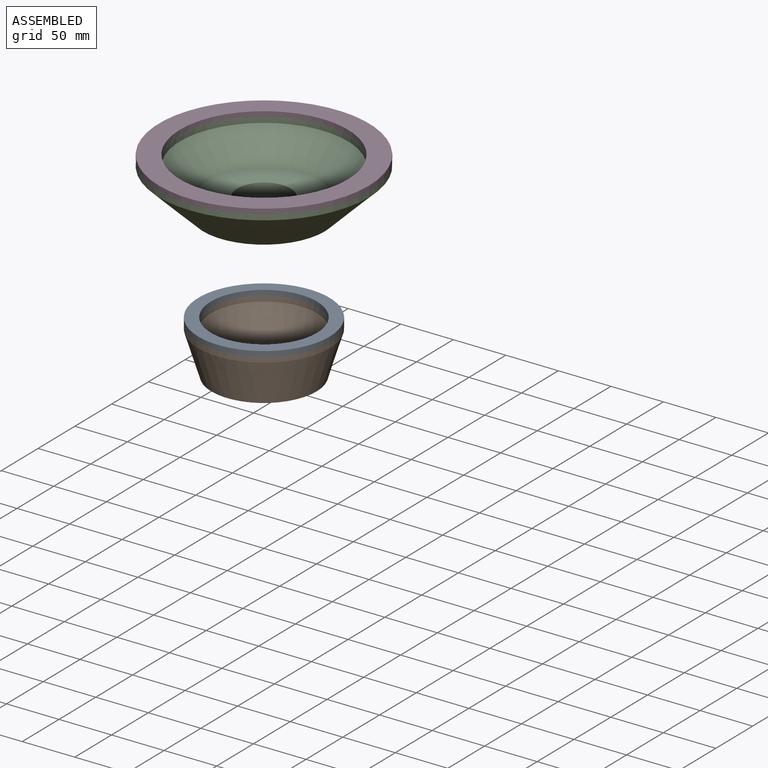
[diagram: assembled view]
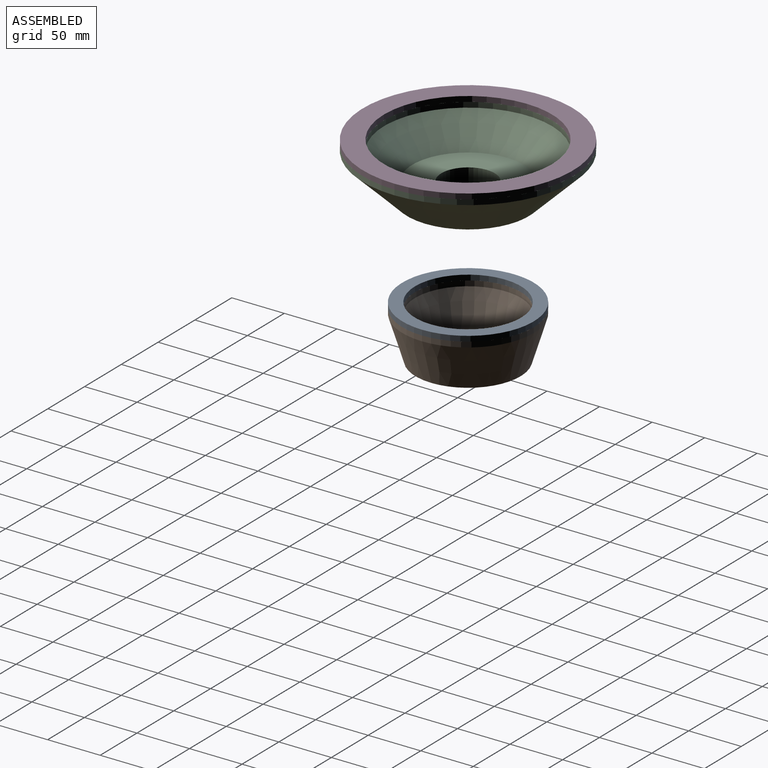
[diagram: assembled view, second angle]
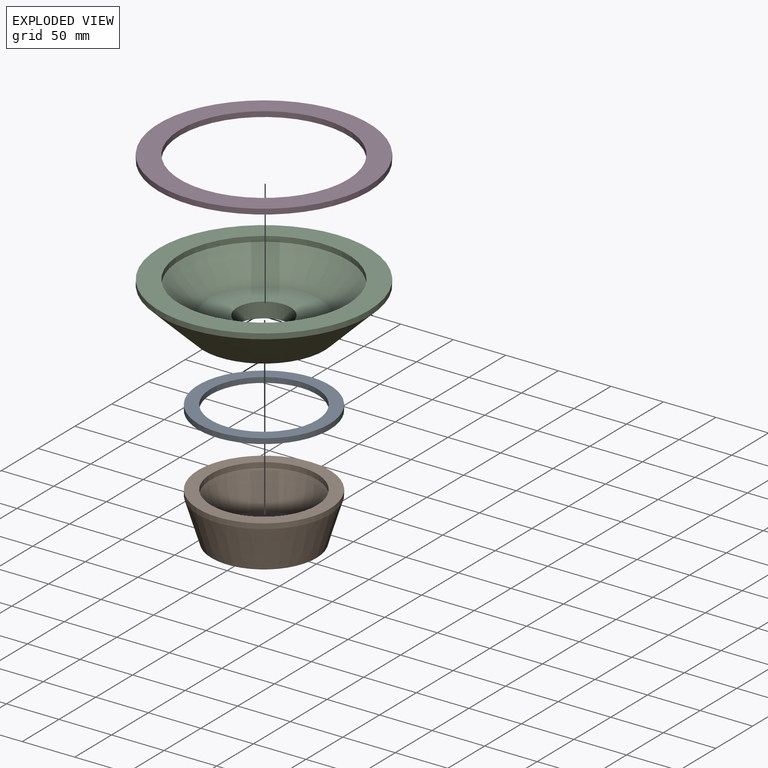
[diagram: exploded view]
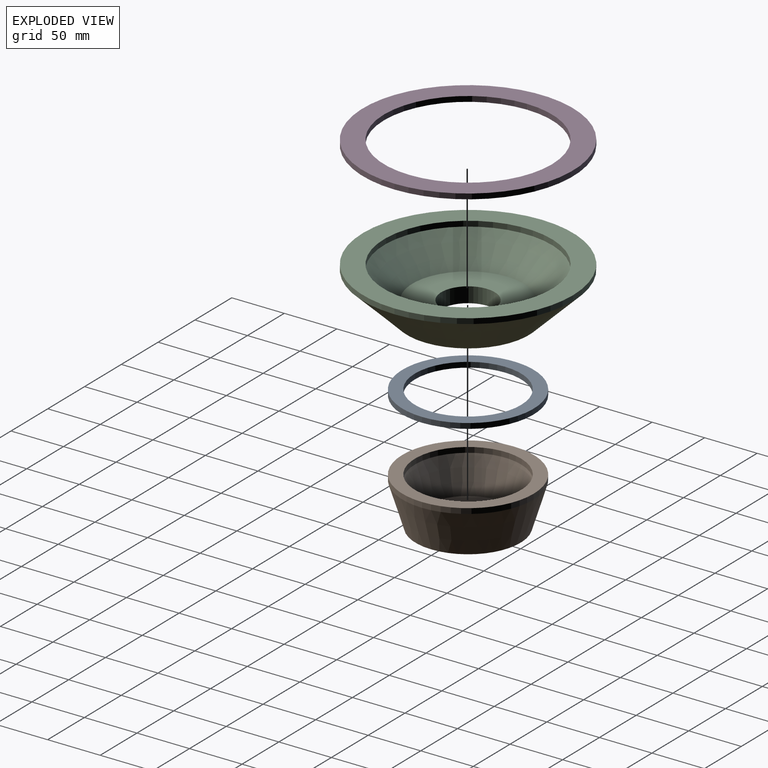
[diagram: exploded view, second angle]
ASSEMBLY  parts=4 mates=2
PART A: 4 faces, bbox 125x125x5 mm
  f0: cylinder r=62.5mm len=125mm, axis (0,0,1), area 1963.5mm2, adj f1,f3
  f1: plane 125x125mm, normal (0,0,-1), area 4260mm2, adj f0,f2
  f2: cylinder r=50.5mm len=101mm, axis (0,0,1), area 1586.5mm2, adj f1,f3
  f3: plane 125x125mm, normal (0,0,1), area 4260mm2, adj f0,f2
PART B: 8 faces, bbox 125x125x45.5 mm
  f0: plane 125x125mm, normal (0,0,1), area 4260mm2, adj f1,f7
  f1: cylinder r=62.5mm len=125mm, axis (0,0,1), area 1963.5mm2, adj f0,f2
  f2: cone r=62.5mm half-angle=17.2deg, axis (0,0,1), area 14980.1mm2, adj f1,f3
  f3: plane 100x100mm, normal (0,0,-1), area 7539.8mm2, adj f2,f4
  f4: cylinder r=10mm len=20mm, axis (0,0,1), area 502.7mm2, adj f3,f5
  f5: plane 80.94x80.94mm, normal (0,0,1), area 4831mm2, adj f4,f6
  f6: cone r=40.47mm half-angle=17.2deg, axis (0,0,1), area 9720.4mm2, adj f5,f7
  f7: cylinder r=50.5mm len=101mm, axis (0,0,1), area 1586.5mm2, adj f0,f6
PART C: 8 faces, bbox 200x200x45.5 mm
  f0: plane 200x200mm, normal (0,0,1), area 11309.7mm2, adj f1,f7
  f1: cylinder r=100mm len=200mm, axis (0,0,1), area 3141.6mm2, adj f0,f2
  f2: cone r=100mm half-angle=46deg, axis (0,0,1), area 28961.3mm2, adj f1,f3
  f3: plane 116x116mm, normal (0,0,-1), area 8525.5mm2, adj f2,f4
  f4: cylinder r=25.5mm len=51mm, axis (0,0,1), area 2323.2mm2, adj f3,f5
  f5: plane 106.07x106.07mm, normal (0,0,1), area 6794.3mm2, adj f4,f6
  f6: cone r=53.04mm half-angle=46deg, axis (0,0,1), area 15654.9mm2, adj f5,f7
  f7: cylinder r=80mm len=160mm, axis (0,0,1), area 2513.3mm2, adj f0,f6
PART D: 4 faces, bbox 200x200x5 mm
  f0: cylinder r=100mm len=200mm, axis (0,0,1), area 3141.6mm2, adj f1,f3
  f1: plane 200x200mm, normal (0,0,-1), area 11309.7mm2, adj f0,f2
  f2: cylinder r=80mm len=160mm, axis (0,0,1), area 2513.3mm2, adj f1,f3
  f3: plane 200x200mm, normal (0,0,1), area 11309.7mm2, adj f0,f2
PLACE A at identity
PLACE B at identity
PLACE C at identity
PLACE D at identity
MATE fastened A.f0 <-> B.f1  axis (0,0,-1) through (0,0,-57.74)mm
MATE fastened D.f0 <-> C.f1  axis (0,0,-1) through (0,0,82.16)mm
